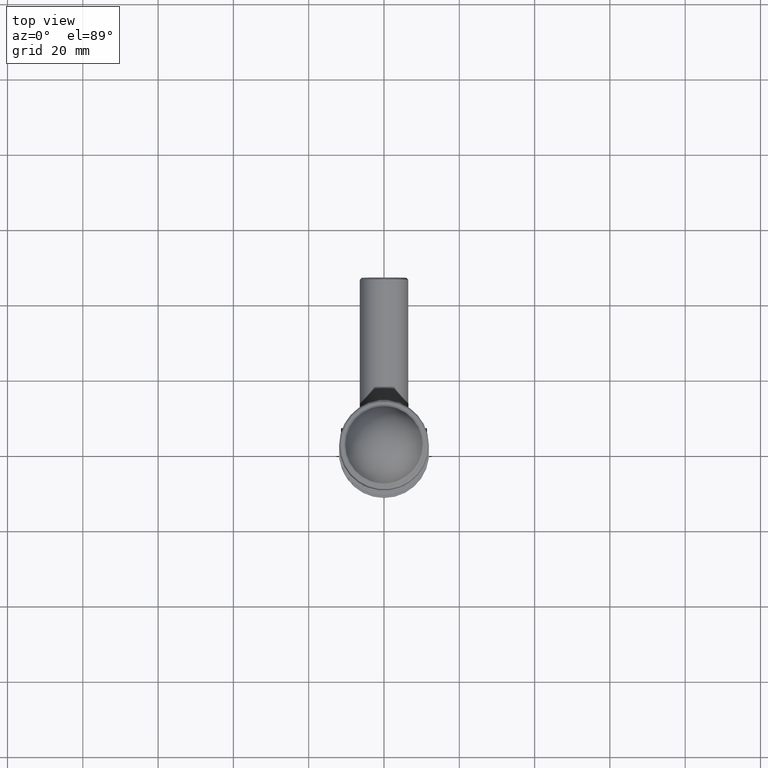
[diagram: clean part render]
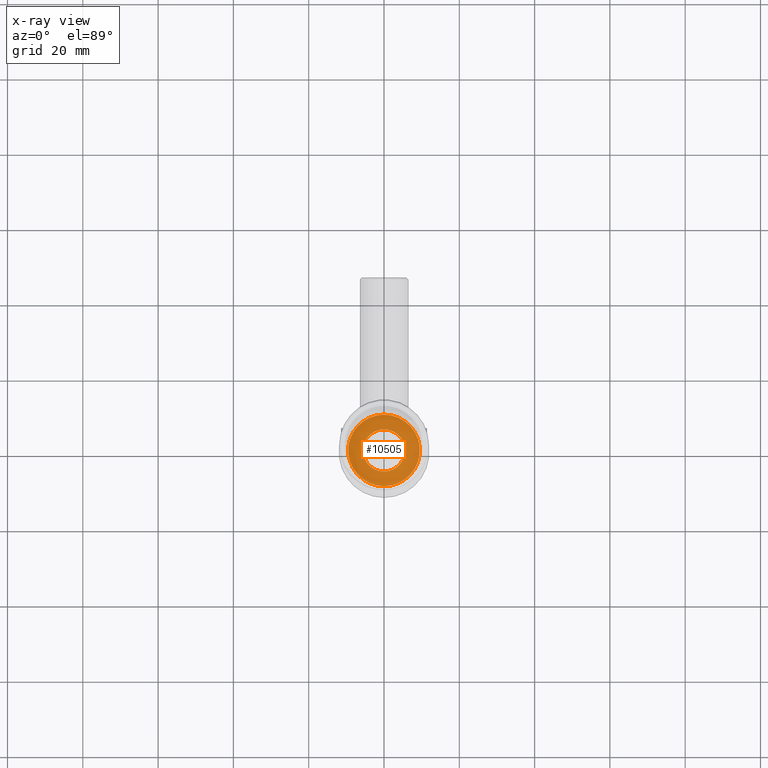
[diagram: x-ray — body ghosted, one internal face saturated and labeled with its STEP entity id]
A machine part, top view, then the same camera in x-ray: the body is ghosted and one INTERNAL B-rep face — a face not visible from any outside direction — is saturated and labeled: STEP entity #10505.
In plain terms, the highlighted planar face has unit normal (0, 0, 1).
Its self-contained STEP definition (entity closure, byte-faithful):
#153 = AXIS2_PLACEMENT_3D ( 'NONE', #8137, #964, #2059 ) ;
#712 = ORIENTED_EDGE ( 'NONE', *, *, #2115, .T. ) ;
#780 = AXIS2_PLACEMENT_3D ( 'NONE', #1760, #8900, #2756 ) ;
#964 = DIRECTION ( 'NONE',  ( -0.000000000000000000, -1.000000000000000000, -0.000000000000000000 ) ) ;
#1281 = EDGE_CURVE ( 'NONE', #8396, #2865, #15212, .T. ) ;
#1513 = AXIS2_PLACEMENT_3D ( 'NONE', #10818, #5008, #6219 ) ;
#1570 = VERTEX_POINT ( 'NONE', #14129 ) ;
#1625 = CARTESIAN_POINT ( 'NONE',  ( -8.227241335952165002, -3.500000000000000000, -4.750000000000000000 ) ) ;
#1655 = VERTEX_POINT ( 'NONE', #7641 ) ;
#1760 = CARTESIAN_POINT ( 'NONE',  ( 0.000000000000000000, -3.500000000000000000, 0.000000000000000000 ) ) ;
#2003 = CARTESIAN_POINT ( 'NONE',  ( 0.000000000000000000, -3.500000000000000000, 0.000000000000000000 ) ) ;
#2054 = DIRECTION ( 'NONE',  ( -0.000000000000000000, -1.000000000000000000, -0.000000000000000000 ) ) ;
#2059 = DIRECTION ( 'NONE',  ( -3.552713678800500929E-15, 0.000000000000000000, 1.000000000000000000 ) ) ;
#2115 = EDGE_CURVE ( 'NONE', #1570, #8396, #13887, .T. ) ;
#2756 = DIRECTION ( 'NONE',  ( 0.000000000000000000, -0.000000000000000000, 1.000000000000000000 ) ) ;
#2792 = EDGE_CURVE ( 'NONE', #2865, #11048, #6573, .T. ) ;
#2797 = CARTESIAN_POINT ( 'NONE',  ( -8.227241335952165002, -3.500000000000000000, 4.749999999999999112 ) ) ;
#2865 = VERTEX_POINT ( 'NONE', #1625 ) ;
#3384 = ORIENTED_EDGE ( 'NONE', *, *, #1281, .T. ) ;
#3591 = EDGE_LOOP ( 'NONE', ( #13218 ) ) ;
#3640 = DIRECTION ( 'NONE',  ( -0.000000000000000000, -1.000000000000000000, -0.000000000000000000 ) ) ;
#3883 = CARTESIAN_POINT ( 'NONE',  ( 0.000000000000000000, -3.500000000000000000, 0.000000000000000000 ) ) ;
#4587 = EDGE_CURVE ( 'NONE', #5524, #14824, #12712, .T. ) ;
#4762 = EDGE_CURVE ( 'NONE', #14824, #1570, #10306, .T. ) ;
#5008 = DIRECTION ( 'NONE',  ( -0.000000000000000000, -1.000000000000000000, -0.000000000000000000 ) ) ;
#5165 = AXIS2_PLACEMENT_3D ( 'NONE', #3883, #12192, #14745 ) ;
#5524 = VERTEX_POINT ( 'NONE', #8055 ) ;
#6031 = DIRECTION ( 'NONE',  ( 1.776356839400250465E-15, 0.000000000000000000, 1.000000000000000000 ) ) ;
#6084 = FACE_OUTER_BOUND ( 'NONE', #11697, .T. ) ;
#6219 = DIRECTION ( 'NONE',  ( 0.000000000000000000, 0.000000000000000000, 1.000000000000000000 ) ) ;
#6573 = CIRCLE ( 'NONE', #11709, 9.499999999999998224 ) ;
#6673 = CARTESIAN_POINT ( 'NONE',  ( 8.227241335952165002, -3.500000000000000000, 4.749999999999998224 ) ) ;
#7591 = FACE_BOUND ( 'NONE', #3591, .T. ) ;
#7641 = CARTESIAN_POINT ( 'NONE',  ( 0.000000000000000000, -3.500000000000000000, 5.600000000000000533 ) ) ;
#7847 = AXIS2_PLACEMENT_3D ( 'NONE', #12233, #11149, #10027 ) ;
#7926 = EDGE_CURVE ( 'NONE', #11048, #5524, #10798, .T. ) ;
#8055 = CARTESIAN_POINT ( 'NONE',  ( 8.227241335952163226, -3.500000000000000000, -4.750000000000003553 ) ) ;
#8137 = CARTESIAN_POINT ( 'NONE',  ( 0.000000000000000000, -3.500000000000000000, 0.000000000000000000 ) ) ;
#8396 = VERTEX_POINT ( 'NONE', #2797 ) ;
#8900 = DIRECTION ( 'NONE',  ( 0.000000000000000000, 1.000000000000000000, 0.000000000000000000 ) ) ;
#8956 = PLANE ( 'NONE',  #780 ) ;
#9264 = AXIS2_PLACEMENT_3D ( 'NONE', #2003, #2054, #10434 ) ;
#10027 = DIRECTION ( 'NONE',  ( 0.000000000000000000, 0.000000000000000000, 1.000000000000000000 ) ) ;
#10306 = CIRCLE ( 'NONE', #153, 9.499999999999998224 ) ;
#10407 = DIRECTION ( 'NONE',  ( 0.000000000000000000, 0.000000000000000000, 1.000000000000000000 ) ) ;
#10434 = DIRECTION ( 'NONE',  ( 0.000000000000000000, 0.000000000000000000, 1.000000000000000000 ) ) ;
#10505 = ADVANCED_FACE ( 'NONE', ( #7591, #6084 ), #8956, .F. ) ;
#10798 = CIRCLE ( 'NONE', #5165, 9.499999999999998224 ) ;
#10818 = CARTESIAN_POINT ( 'NONE',  ( 0.000000000000000000, -3.500000000000000000, 0.000000000000000000 ) ) ;
#10837 = CARTESIAN_POINT ( 'NONE',  ( 0.000000000000000000, -3.500000000000000000, 0.000000000000000000 ) ) ;
#11048 = VERTEX_POINT ( 'NONE', #14627 ) ;
#11149 = DIRECTION ( 'NONE',  ( -0.000000000000000000, -1.000000000000000000, -0.000000000000000000 ) ) ;
#11416 = DIRECTION ( 'NONE',  ( 0.000000000000000000, 1.000000000000000000, 0.000000000000000000 ) ) ;
#11697 = EDGE_LOOP ( 'NONE', ( #14977, #712, #3384, #13040, #12438, #14122 ) ) ;
#11709 = AXIS2_PLACEMENT_3D ( 'NONE', #10837, #3640, #6031 ) ;
#12080 = AXIS2_PLACEMENT_3D ( 'NONE', #13751, #11416, #10407 ) ;
#12192 = DIRECTION ( 'NONE',  ( 0.000000000000000000, -1.000000000000000000, 0.000000000000000000 ) ) ;
#12233 = CARTESIAN_POINT ( 'NONE',  ( 0.000000000000000000, -3.500000000000000000, 0.000000000000000000 ) ) ;
#12438 = ORIENTED_EDGE ( 'NONE', *, *, #7926, .T. ) ;
#12712 = CIRCLE ( 'NONE', #7847, 9.499999999999998224 ) ;
#13040 = ORIENTED_EDGE ( 'NONE', *, *, #2792, .T. ) ;
#13218 = ORIENTED_EDGE ( 'NONE', *, *, #13680, .T. ) ;
#13297 = CIRCLE ( 'NONE', #12080, 5.600000000000000533 ) ;
#13680 = EDGE_CURVE ( 'NONE', #1655, #1655, #13297, .T. ) ;
#13751 = CARTESIAN_POINT ( 'NONE',  ( 0.000000000000000000, -3.500000000000000000, 0.000000000000000000 ) ) ;
#13887 = CIRCLE ( 'NONE', #9264, 9.499999999999998224 ) ;
#14122 = ORIENTED_EDGE ( 'NONE', *, *, #4587, .T. ) ;
#14129 = CARTESIAN_POINT ( 'NONE',  ( 0.000000000000000000, -3.500000000000000000, 9.499999999999998224 ) ) ;
#14627 = CARTESIAN_POINT ( 'NONE',  ( -1.502314598737159623E-15, -3.500000000000000000, -9.499999999999998224 ) ) ;
#14745 = DIRECTION ( 'NONE',  ( 0.000000000000000000, 0.000000000000000000, -1.000000000000000000 ) ) ;
#14824 = VERTEX_POINT ( 'NONE', #6673 ) ;
#14977 = ORIENTED_EDGE ( 'NONE', *, *, #4762, .T. ) ;
#15212 = CIRCLE ( 'NONE', #1513, 9.499999999999998224 ) ;